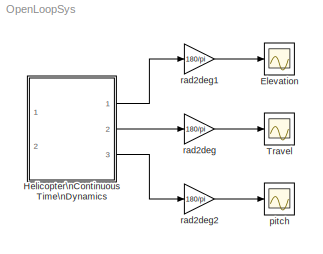
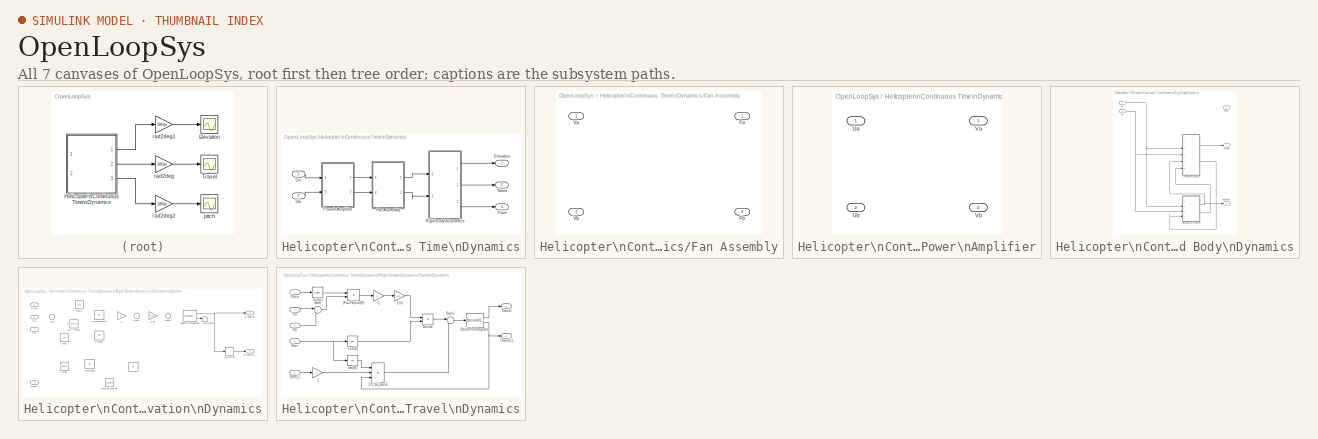
[diagram: thumbnail index - all 7 canvases of the model, root first then tree order]
MODEL OpenLoopSys
KIND model
BLOCK [Scope] Elevation
  DataFormat = StructureWithTime
  Floating = off
  LimitDataPoints = off
  NumInputPorts = 1
  Ports = [1]
  SID = 1
  SampleTime = 0
  SaveName = elev
  SaveToWorkspace = on
  ShowLegends = off
  TimeRange = 60
  YMax = 30
  YMin = -50
  ZoomMode = xonly
BLOCK [SubSystem] Helicopter\nContinuous Time\nDynamics
  Ports = [2, 3]
  RequestExecContextInheritance = off
  SID = 2
BLOCK [Outport] Helicopter\nContinuous Time\nDynamics/Elevation
  IconDisplay = Port number
  SID = 81
BLOCK [SubSystem] Helicopter\nContinuous Time\nDynamics/Fan Assembly
  Ports = [2, 2]
  RequestExecContextInheritance = off
  SID = 5
BLOCK [Outport] Helicopter\nContinuous Time\nDynamics/Fan Assembly/Fa
  IconDisplay = Port number
  SID = 12
BLOCK [Outport] Helicopter\nContinuous Time\nDynamics/Fan Assembly/Fb
  IconDisplay = Port number
  Port = 2
  SID = 13
BLOCK [Inport] Helicopter\nContinuous Time\nDynamics/Fan Assembly/Va
  IconDisplay = Port number
  SID = 6
BLOCK [Inport] Helicopter\nContinuous Time\nDynamics/Fan Assembly/Vb
  IconDisplay = Port number
  Port = 2
  SID = 7
BLOCK [Outport] Helicopter\nContinuous Time\nDynamics/Pitch
  IconDisplay = Port number
  Port = 3
  SID = 83
BLOCK [SubSystem] Helicopter\nContinuous Time\nDynamics/Power\nAmplifier
  Ports = [2, 2]
  RequestExecContextInheritance = off
  SID = 14
BLOCK [Inport] Helicopter\nContinuous Time\nDynamics/Power\nAmplifier/Ua
  IconDisplay = Port number
  SID = 15
BLOCK [Inport] Helicopter\nContinuous Time\nDynamics/Power\nAmplifier/Ub
  IconDisplay = Port number
  Port = 2
  SID = 16
BLOCK [Outport] Helicopter\nContinuous Time\nDynamics/Power\nAmplifier/Va
  IconDisplay = Port number
  SID = 21
BLOCK [Outport] Helicopter\nContinuous Time\nDynamics/Power\nAmplifier/Vb
  IconDisplay = Port number
  Port = 2
  SID = 22
BLOCK [SubSystem] Helicopter\nContinuous Time\nDynamics/Rigid Body\nDynamics
  Ports = [2, 3]
  RequestExecContextInheritance = off
  SID = 178
BLOCK [Outport] Helicopter\nContinuous Time\nDynamics/Rigid Body\nDynamics/Elevation
  IconDisplay = Port number
  SID = 237
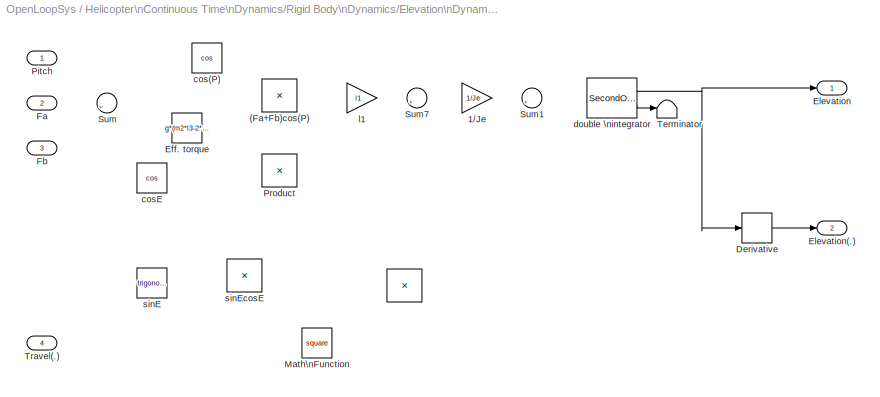
BLOCK [SubSystem] Helicopter\nContinuous Time\nDynamics/Rigid Body\nDynamics/Elevation\nDynamics
  Ports = [4, 2]
  RequestExecContextInheritance = off
  SID = 181
BLOCK [Product] Helicopter\nContinuous Time\nDynamics/Rigid Body\nDynamics/Elevation\nDynamics/ 
  Ports = [2, 1]
  SID = 186
BLOCK [Product] Helicopter\nContinuous Time\nDynamics/Rigid Body\nDynamics/Elevation\nDynamics/(Fa+Fb)cos(P)
  Ports = [2, 1]
  SID = 187
BLOCK [Gain] Helicopter\nContinuous Time\nDynamics/Rigid Body\nDynamics/Elevation\nDynamics/1//Je
  Gain = 1/Je
  SID = 188
BLOCK [Derivative] Helicopter\nContinuous Time\nDynamics/Rigid Body\nDynamics/Elevation\nDynamics/Derivative
  SID = 189
BLOCK [Constant] Helicopter\nContinuous Time\nDynamics/Rigid Body\nDynamics/Elevation\nDynamics/Eff. torque
  SID = 190
  Value = g*(m2*l3-2*m1*l1)
BLOCK [Outport] Helicopter\nContinuous Time\nDynamics/Rigid Body\nDynamics/Elevation\nDynamics/Elevation
  IconDisplay = Port number
  SID = 203
BLOCK [Outport] Helicopter\nContinuous Time\nDynamics/Rigid Body\nDynamics/Elevation\nDynamics/Elevation(.)
  IconDisplay = Port number
  Port = 2
  SID = 204
BLOCK [Inport] Helicopter\nContinuous Time\nDynamics/Rigid Body\nDynamics/Elevation\nDynamics/Fa
  IconDisplay = Port number
  Port = 2
  SID = 183
BLOCK [Inport] Helicopter\nContinuous Time\nDynamics/Rigid Body\nDynamics/Elevation\nDynamics/Fb
  IconDisplay = Port number
  Port = 3
  SID = 184
BLOCK [Math] Helicopter\nContinuous Time\nDynamics/Rigid Body\nDynamics/Elevation\nDynamics/Math\nFunction
  Operator = square
  Ports = [1, 1]
  SID = 191
BLOCK [Inport] Helicopter\nContinuous Time\nDynamics/Rigid Body\nDynamics/Elevation\nDynamics/Pitch
  IconDisplay = Port number
  SID = 182
BLOCK [Product] Helicopter\nContinuous Time\nDynamics/Rigid Body\nDynamics/Elevation\nDynamics/Product
  Ports = [2, 1]
  SID = 192
BLOCK [Sum] Helicopter\nContinuous Time\nDynamics/Rigid Body\nDynamics/Elevation\nDynamics/Sum
  IconShape = round
  Inputs = |++
  Ports = [2, 1]
  SID = 193
BLOCK [Sum] Helicopter\nContinuous Time\nDynamics/Rigid Body\nDynamics/Elevation\nDynamics/Sum1
  IconShape = round
  Inputs = |+-
  Ports = [2, 1]
  SID = 194
BLOCK [Sum] Helicopter\nContinuous Time\nDynamics/Rigid Body\nDynamics/Elevation\nDynamics/Sum7
  IconShape = round
  Inputs = |++
  Ports = [2, 1]
  SID = 195
BLOCK [Terminator] Helicopter\nContinuous Time\nDynamics/Rigid Body\nDynamics/Elevation\nDynamics/Terminator
  SID = 196
BLOCK [Inport] Helicopter\nContinuous Time\nDynamics/Rigid Body\nDynamics/Elevation\nDynamics/Travel(.)
  IconDisplay = Port number
  Port = 4
  SID = 185
BLOCK [Trigonometry] Helicopter\nContinuous Time\nDynamics/Rigid Body\nDynamics/Elevation\nDynamics/cos(P)
  Operator = cos
  Ports = [1, 1]
  SID = 197
BLOCK [Trigonometry] Helicopter\nContinuous Time\nDynamics/Rigid Body\nDynamics/Elevation\nDynamics/cosE
  Operator = cos
  Ports = [1, 1]
  SID = 198
BLOCK [SecondOrderIntegrator] Helicopter\nContinuous Time\nDynamics/Rigid Body\nDynamics/Elevation\nDynamics/double \nintegrator
  ICX = e_lim_l
  LimitDXDT = on
  LimitX = on
  LowerLimitDXDT = -2*pi
  LowerLimitX = e_lim_l
  Ports = [1, 2]
  SID = 199
  UpperLimitDXDT = 2*pi
  UpperLimitX = e_lim_u
BLOCK [Gain] Helicopter\nContinuous Time\nDynamics/Rigid Body\nDynamics/Elevation\nDynamics/l1
  Gain = l1
  SID = 200
BLOCK [Trigonometry] Helicopter\nContinuous Time\nDynamics/Rigid Body\nDynamics/Elevation\nDynamics/sinE
  Ports = [1, 1]
  SID = 201
BLOCK [Product] Helicopter\nContinuous Time\nDynamics/Rigid Body\nDynamics/Elevation\nDynamics/sinEcosE
  Ports = [2, 1]
  SID = 202
BLOCK [Inport] Helicopter\nContinuous Time\nDynamics/Rigid Body\nDynamics/Fa
  IconDisplay = Port number
  SID = 179
BLOCK [Inport] Helicopter\nContinuous Time\nDynamics/Rigid Body\nDynamics/Fb
  IconDisplay = Port number
  Port = 2
  SID = 180
BLOCK [Outport] Helicopter\nContinuous Time\nDynamics/Rigid Body\nDynamics/Pitch
  IconDisplay = Port number
  Port = 3
  SID = 239
BLOCK [Outport] Helicopter\nContinuous Time\nDynamics/Rigid Body\nDynamics/Travel
  IconDisplay = Port number
  Port = 2
  SID = 238
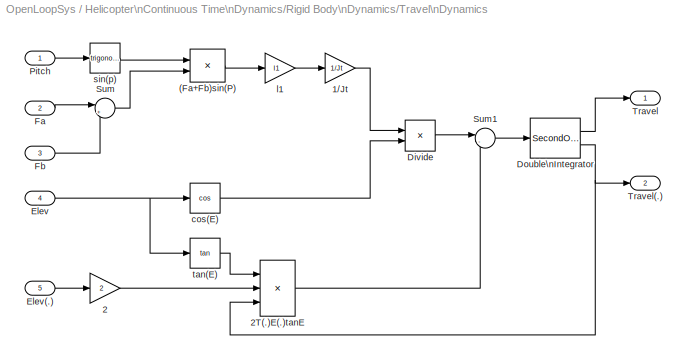
BLOCK [SubSystem] Helicopter\nContinuous Time\nDynamics/Rigid Body\nDynamics/Travel\nDynamics
  Ports = [5, 2]
  RequestExecContextInheritance = off
  SID = 217
BLOCK [Product] Helicopter\nContinuous Time\nDynamics/Rigid Body\nDynamics/Travel\nDynamics/(Fa+Fb)sin(P)
  Ports = [2, 1]
  SID = 223
BLOCK [Gain] Helicopter\nContinuous Time\nDynamics/Rigid Body\nDynamics/Travel\nDynamics/1//Jt
  Gain = 1/Jt
  SID = 224
BLOCK [Gain] Helicopter\nContinuous Time\nDynamics/Rigid Body\nDynamics/Travel\nDynamics/2
  Gain = 2
  SID = 225
BLOCK [Product] Helicopter\nContinuous Time\nDynamics/Rigid Body\nDynamics/Travel\nDynamics/2T(.)E(.)tanE
  Inputs = 3
  Ports = [3, 1]
  SID = 226
BLOCK [Product] Helicopter\nContinuous Time\nDynamics/Rigid Body\nDynamics/Travel\nDynamics/Divide
  InputSameDT = off
  Inputs = */
  OutDataTypeStr = Inherit: Inherit via internal rule
  Ports = [2, 1]
  RndMeth = Floor
  SID = 227
  SaturateOnIntegerOverflow = off
BLOCK [SecondOrderIntegrator] Helicopter\nContinuous Time\nDynamics/Rigid Body\nDynamics/Travel\nDynamics/Double\nIntegrator
  LimitDXDT = on
  LowerLimitDXDT = -2
  LowerLimitX = 0
  Ports = [1, 2]
  SID = 228
  UpperLimitDXDT = 2
  UpperLimitX = 1
BLOCK [Inport] Helicopter\nContinuous Time\nDynamics/Rigid Body\nDynamics/Travel\nDynamics/Elev
  IconDisplay = Port number
  Port = 4
  SID = 221
BLOCK [Inport] Helicopter\nContinuous Time\nDynamics/Rigid Body\nDynamics/Travel\nDynamics/Elev(.)
  IconDisplay = Port number
  Port = 5
  SID = 222
BLOCK [Inport] Helicopter\nContinuous Time\nDynamics/Rigid Body\nDynamics/Travel\nDynamics/Fa
  IconDisplay = Port number
  Port = 2
  SID = 219
BLOCK [Inport] Helicopter\nContinuous Time\nDynamics/Rigid Body\nDynamics/Travel\nDynamics/Fb
  IconDisplay = Port number
  Port = 3
  SID = 220
BLOCK [Inport] Helicopter\nContinuous Time\nDynamics/Rigid Body\nDynamics/Travel\nDynamics/Pitch
  IconDisplay = Port number
  SID = 218
BLOCK [Sum] Helicopter\nContinuous Time\nDynamics/Rigid Body\nDynamics/Travel\nDynamics/Sum
  IconShape = round
  Inputs = |++
  Ports = [2, 1]
  SID = 229
BLOCK [Sum] Helicopter\nContinuous Time\nDynamics/Rigid Body\nDynamics/Travel\nDynamics/Sum1
  IconShape = round
  Inputs = |-+
  Ports = [2, 1]
  SID = 230
BLOCK [Outport] Helicopter\nContinuous Time\nDynamics/Rigid Body\nDynamics/Travel\nDynamics/Travel
  IconDisplay = Port number
  SID = 235
BLOCK [Outport] Helicopter\nContinuous Time\nDynamics/Rigid Body\nDynamics/Travel\nDynamics/Travel(.)
  IconDisplay = Port number
  Port = 2
  SID = 236
BLOCK [Trigonometry] Helicopter\nContinuous Time\nDynamics/Rigid Body\nDynamics/Travel\nDynamics/cos(E)
  Operator = cos
  Ports = [1, 1]
  SID = 231
BLOCK [Gain] Helicopter\nContinuous Time\nDynamics/Rigid Body\nDynamics/Travel\nDynamics/l1
  Gain = l1
  SID = 232
BLOCK [Trigonometry] Helicopter\nContinuous Time\nDynamics/Rigid Body\nDynamics/Travel\nDynamics/sin(p)
  Ports = [1, 1]
  SID = 233
BLOCK [Trigonometry] Helicopter\nContinuous Time\nDynamics/Rigid Body\nDynamics/Travel\nDynamics/tan(E)
  Operator = tan
  Ports = [1, 1]
  SID = 234
BLOCK [Outport] Helicopter\nContinuous Time\nDynamics/Travel
  IconDisplay = Port number
  Port = 2
  SID = 82
BLOCK [Inport] Helicopter\nContinuous Time\nDynamics/Ua
  IconDisplay = Port number
  SID = 3
BLOCK [Inport] Helicopter\nContinuous Time\nDynamics/Ub
  IconDisplay = Port number
  Port = 2
  SID = 4
BLOCK [Scope] Travel
  DataFormat = StructureWithTime
  Floating = off
  LimitDataPoints = off
  NumInputPorts = 1
  Ports = [1]
  SID = 84
  SampleTime = 0
  SaveName = trav
  SaveToWorkspace = on
  ShowLegends = off
  TimeRange = 60
  YMax = 300
  YMin = -150
  ZoomMode = yonly
BLOCK [Scope] pitch
  DataFormat = StructureWithTime
  Floating = off
  LimitDataPoints = off
  NumInputPorts = 1
  Ports = [1]
  SID = 85
  SampleTime = 0
  SaveName = pitch
  SaveToWorkspace = on
  ShowLegends = off
  TimeRange = 60
  YMax = 20
  YMin = -25
  ZoomMode = yonly
BLOCK [Gain] rad2deg
  Gain = 180/pi
  SID = 86
BLOCK [Gain] rad2deg1
  Gain = 180/pi
  SID = 87
BLOCK [Gain] rad2deg2
  Gain = 180/pi
  SID = 88
LINE Helicopter\nContinuous Time\nDynamics/Fan Assembly:1 -> Helicopter\nContinuous Time\nDynamics/Rigid Body\nDynamics:1
LINE Helicopter\nContinuous Time\nDynamics/Fan Assembly:2 -> Helicopter\nContinuous Time\nDynamics/Rigid Body\nDynamics:2
LINE Helicopter\nContinuous Time\nDynamics/Power\nAmplifier:1 -> Helicopter\nContinuous Time\nDynamics/Fan Assembly:1
LINE Helicopter\nContinuous Time\nDynamics/Power\nAmplifier:2 -> Helicopter\nContinuous Time\nDynamics/Fan Assembly:2
LINE Helicopter\nContinuous Time\nDynamics/Rigid Body\nDynamics/Elevation\nDynamics/Derivative:1 -> Helicopter\nContinuous Time\nDynamics/Rigid Body\nDynamics/Elevation\nDynamics/Elevation(.):1
NET Helicopter\nContinuous Time\nDynamics/Rigid Body\nDynamics/Elevation\nDynamics/double \nintegrator:1 -> Helicopter\nContinuous Time\nDynamics/Rigid Body\nDynamics/Elevation\nDynamics/Derivative:1, Helicopter\nContinuous Time\nDynamics/Rigid Body\nDynamics/Elevation\nDynamics/Elevation:1
LINE Helicopter\nContinuous Time\nDynamics/Rigid Body\nDynamics/Elevation\nDynamics/double \nintegrator:2 -> Helicopter\nContinuous Time\nDynamics/Rigid Body\nDynamics/Elevation\nDynamics/Terminator:1
NET Helicopter\nContinuous Time\nDynamics/Rigid Body\nDynamics/Elevation\nDynamics:1 -> Helicopter\nContinuous Time\nDynamics/Rigid Body\nDynamics/Elevation:1, Helicopter\nContinuous Time\nDynamics/Rigid Body\nDynamics/Travel\nDynamics:4
LINE Helicopter\nContinuous Time\nDynamics/Rigid Body\nDynamics/Elevation\nDynamics:2 -> Helicopter\nContinuous Time\nDynamics/Rigid Body\nDynamics/Travel\nDynamics:5
NET Helicopter\nContinuous Time\nDynamics/Rigid Body\nDynamics/Fa:1 -> Helicopter\nContinuous Time\nDynamics/Rigid Body\nDynamics/Elevation\nDynamics:2, Helicopter\nContinuous Time\nDynamics/Rigid Body\nDynamics/Travel\nDynamics:2
NET Helicopter\nContinuous Time\nDynamics/Rigid Body\nDynamics/Fb:1 -> Helicopter\nContinuous Time\nDynamics/Rigid Body\nDynamics/Elevation\nDynamics:3, Helicopter\nContinuous Time\nDynamics/Rigid Body\nDynamics/Travel\nDynamics:3
LINE Helicopter\nContinuous Time\nDynamics/Rigid Body\nDynamics/Travel\nDynamics/(Fa+Fb)sin(P):1 -> Helicopter\nContinuous Time\nDynamics/Rigid Body\nDynamics/Travel\nDynamics/l1:1
LINE Helicopter\nContinuous Time\nDynamics/Rigid Body\nDynamics/Travel\nDynamics/1//Jt:1 -> Helicopter\nContinuous Time\nDynamics/Rigid Body\nDynamics/Travel\nDynamics/Divide:1
LINE Helicopter\nContinuous Time\nDynamics/Rigid Body\nDynamics/Travel\nDynamics/2:1 -> Helicopter\nContinuous Time\nDynamics/Rigid Body\nDynamics/Travel\nDynamics/2T(.)E(.)tanE:2
LINE Helicopter\nContinuous Time\nDynamics/Rigid Body\nDynamics/Travel\nDynamics/2T(.)E(.)tanE:1 -> Helicopter\nContinuous Time\nDynamics/Rigid Body\nDynamics/Travel\nDynamics/Sum1:2
LINE Helicopter\nContinuous Time\nDynamics/Rigid Body\nDynamics/Travel\nDynamics/Divide:1 -> Helicopter\nContinuous Time\nDynamics/Rigid Body\nDynamics/Travel\nDynamics/Sum1:1
LINE Helicopter\nContinuous Time\nDynamics/Rigid Body\nDynamics/Travel\nDynamics/Double\nIntegrator:1 -> Helicopter\nContinuous Time\nDynamics/Rigid Body\nDynamics/Travel\nDynamics/Travel:1
NET Helicopter\nContinuous Time\nDynamics/Rigid Body\nDynamics/Travel\nDynamics/Double\nIntegrator:2 -> Helicopter\nContinuous Time\nDynamics/Rigid Body\nDynamics/Travel\nDynamics/2T(.)E(.)tanE:3, Helicopter\nContinuous Time\nDynamics/Rigid Body\nDynamics/Travel\nDynamics/Travel(.):1
LINE Helicopter\nContinuous Time\nDynamics/Rigid Body\nDynamics/Travel\nDynamics/Elev(.):1 -> Helicopter\nContinuous Time\nDynamics/Rigid Body\nDynamics/Travel\nDynamics/2:1
NET Helicopter\nContinuous Time\nDynamics/Rigid Body\nDynamics/Travel\nDynamics/Elev:1 -> Helicopter\nContinuous Time\nDynamics/Rigid Body\nDynamics/Travel\nDynamics/cos(E):1, Helicopter\nContinuous Time\nDynamics/Rigid Body\nDynamics/Travel\nDynamics/tan(E):1
LINE Helicopter\nContinuous Time\nDynamics/Rigid Body\nDynamics/Travel\nDynamics/Fa:1 -> Helicopter\nContinuous Time\nDynamics/Rigid Body\nDynamics/Travel\nDynamics/Sum:1
LINE Helicopter\nContinuous Time\nDynamics/Rigid Body\nDynamics/Travel\nDynamics/Fb:1 -> Helicopter\nContinuous Time\nDynamics/Rigid Body\nDynamics/Travel\nDynamics/Sum:2
LINE Helicopter\nContinuous Time\nDynamics/Rigid Body\nDynamics/Travel\nDynamics/Pitch:1 -> Helicopter\nContinuous Time\nDynamics/Rigid Body\nDynamics/Travel\nDynamics/sin(p):1
LINE Helicopter\nContinuous Time\nDynamics/Rigid Body\nDynamics/Travel\nDynamics/Sum1:1 -> Helicopter\nContinuous Time\nDynamics/Rigid Body\nDynamics/Travel\nDynamics/Double\nIntegrator:1
LINE Helicopter\nContinuous Time\nDynamics/Rigid Body\nDynamics/Travel\nDynamics/Sum:1 -> Helicopter\nContinuous Time\nDynamics/Rigid Body\nDynamics/Travel\nDynamics/(Fa+Fb)sin(P):2
LINE Helicopter\nContinuous Time\nDynamics/Rigid Body\nDynamics/Travel\nDynamics/cos(E):1 -> Helicopter\nContinuous Time\nDynamics/Rigid Body\nDynamics/Travel\nDynamics/Divide:2
LINE Helicopter\nContinuous Time\nDynamics/Rigid Body\nDynamics/Travel\nDynamics/l1:1 -> Helicopter\nContinuous Time\nDynamics/Rigid Body\nDynamics/Travel\nDynamics/1//Jt:1
LINE Helicopter\nContinuous Time\nDynamics/Rigid Body\nDynamics/Travel\nDynamics/sin(p):1 -> Helicopter\nContinuous Time\nDynamics/Rigid Body\nDynamics/Travel\nDynamics/(Fa+Fb)sin(P):1
LINE Helicopter\nContinuous Time\nDynamics/Rigid Body\nDynamics/Travel\nDynamics/tan(E):1 -> Helicopter\nContinuous Time\nDynamics/Rigid Body\nDynamics/Travel\nDynamics/2T(.)E(.)tanE:1
LINE Helicopter\nContinuous Time\nDynamics/Rigid Body\nDynamics/Travel\nDynamics:1 -> Helicopter\nContinuous Time\nDynamics/Rigid Body\nDynamics/Travel:1
LINE Helicopter\nContinuous Time\nDynamics/Rigid Body\nDynamics/Travel\nDynamics:2 -> Helicopter\nContinuous Time\nDynamics/Rigid Body\nDynamics/Elevation\nDynamics:4
LINE Helicopter\nContinuous Time\nDynamics/Rigid Body\nDynamics:1 -> Helicopter\nContinuous Time\nDynamics/Elevation:1
LINE Helicopter\nContinuous Time\nDynamics/Rigid Body\nDynamics:2 -> Helicopter\nContinuous Time\nDynamics/Travel:1
LINE Helicopter\nContinuous Time\nDynamics/Rigid Body\nDynamics:3 -> Helicopter\nContinuous Time\nDynamics/Pitch:1
LINE Helicopter\nContinuous Time\nDynamics/Ua:1 -> Helicopter\nContinuous Time\nDynamics/Power\nAmplifier:1
LINE Helicopter\nContinuous Time\nDynamics/Ub:1 -> Helicopter\nContinuous Time\nDynamics/Power\nAmplifier:2
LINE Helicopter\nContinuous Time\nDynamics:1 -> rad2deg1:1
LINE Helicopter\nContinuous Time\nDynamics:2 -> rad2deg:1
LINE Helicopter\nContinuous Time\nDynamics:3 -> rad2deg2:1
LINE rad2deg1:1 -> Elevation:1
LINE rad2deg2:1 -> pitch:1
LINE rad2deg:1 -> Travel:1
note: NET lines group one-source signal fan-out (src -> all destinations, sorted); 1:1 wires keep LINE
